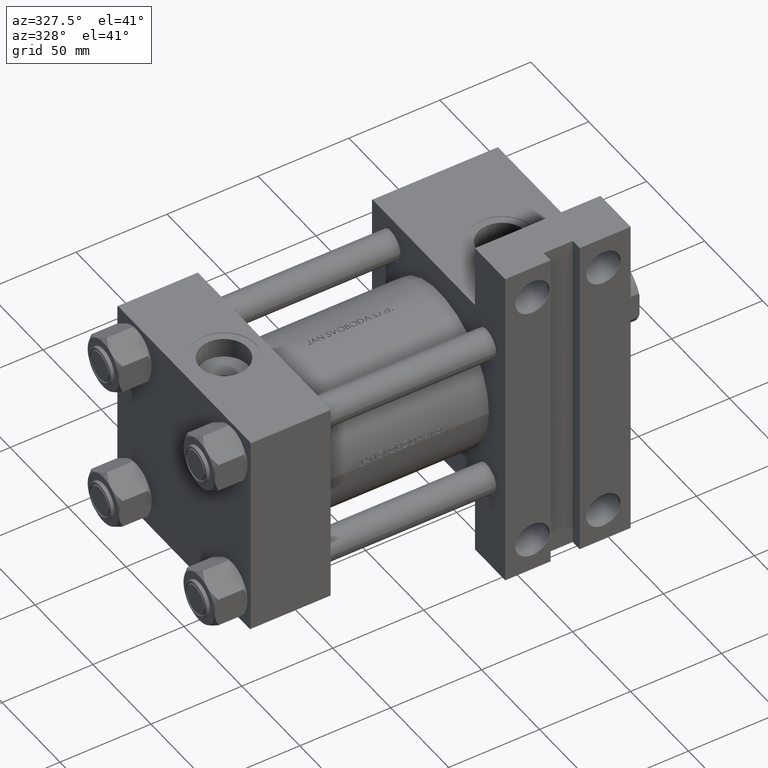
[diagram: clean part render]
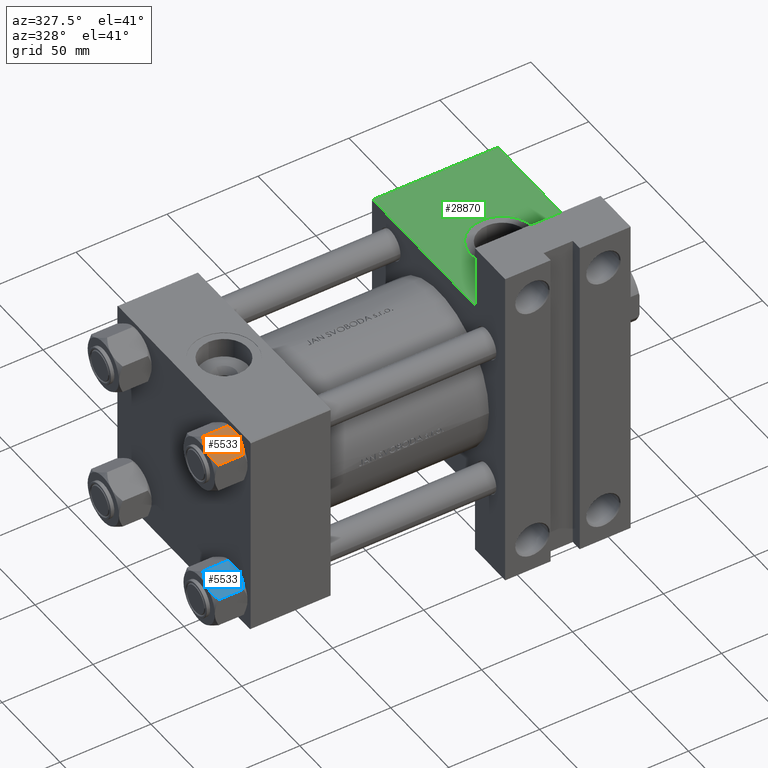
[diagram: same view with three faces highlighted in distinct colors, each labeled with its STEP entity id]
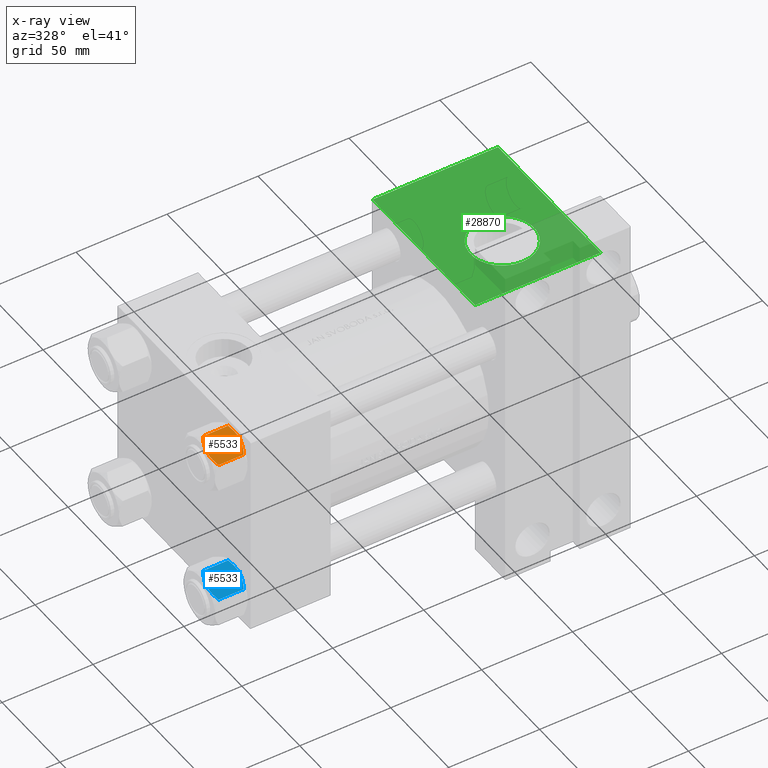
[diagram: x-ray of the same camera — body ghosted, the three highlighted faces saturated]
A machine part, auxiliary view with three faces highlighted in distinct colors.
The next image is the same camera in x-ray (body ghosted, the three faces saturated) — at least one of them is partly hidden behind the body in this view.
Their STEP definitions:

[orange] entity #5533 — the highlighted planar face has unit normal (0, 0.5, -0.866).
#31 = DIRECTION ( 'NONE',  ( 0.4999999999999999445, 0.8660254037844387076, 0.000000000000000000 ) ) ;
#282 = CARTESIAN_POINT ( 'NONE',  ( -9.114548888011780647, 11.26777185211904353, -0.9142282604026925608 ) ) ;
#766 = DIRECTION ( 'NONE',  ( -0.000000000000000000, -0.000000000000000000, 1.000000000000000000 ) ) ;
#783 = VECTOR ( 'NONE', #1164, 999.9999999999998863 ) ;
#817 = CARTESIAN_POINT ( 'NONE',  ( -14.31545111198821374, 2.259544954993889299, -17.08577173959730544 ) ) ;
#1164 = DIRECTION ( 'NONE',  ( 0.4999999999999999445, 0.8660254037844387076, 0.000000000000000000 ) ) ;
#1604 = VERTEX_POINT ( 'NONE', #18184 ) ;
#2180 = CARTESIAN_POINT ( 'NONE',  ( -9.439480280627259745, 10.70497417113493022, -17.26828031537189290 ) ) ;
#2284 = DIRECTION ( 'NONE',  ( 0.4999999999999998890, 0.8660254037844385966, 0.000000000000000000 ) ) ;
#3020 = CARTESIAN_POINT ( 'NONE',  ( -14.92394044919338825, 1.205610507090627781, -1.434462921875002683 ) ) ;
#3071 = ORIENTED_EDGE ( 'NONE', *, *, #34658, .F. ) ;
#3387 = LINE ( 'NONE', #47657, #44774 ) ;
#4420 = LINE ( 'NONE', #4895, #14957 ) ;
#4895 = CARTESIAN_POINT ( 'NONE',  ( -7.809999999999996945, 13.52731680711293727, -18.00000000000000000 ) ) ;
#4922 = B_SPLINE_CURVE_WITH_KNOTS ( 'NONE', 3,
 ( #27691, #24036, #32055, #2180, #43279, #42814, #38656, #46921 ),
 .UNSPECIFIED., .F., .F.,
 ( 4, 2, 2, 4 ),
 ( 0.007890825462474436100, 0.01181022244528555365, 0.01376992093669111156, 0.01572961942809666946 ),
 .UNSPECIFIED. ) ;
#5533 = ADVANCED_FACE ( 'NONE', ( #12729 ), #6170, .F. ) ;
#6170 = PLANE ( 'NONE',  #15885 ) ;
#6235 = ORIENTED_EDGE ( 'NONE', *, *, #11524, .F. ) ;
#6418 = CARTESIAN_POINT ( 'NONE',  ( -15.61999999999999567, 8.023367828467702033E-15, -16.00000000000000000 ) ) ;
#7357 = VERTEX_POINT ( 'NONE', #8325 ) ;
#7815 = CARTESIAN_POINT ( 'NONE',  ( -7.903528262322672582, 13.36532110482643354, -2.000000000000000000 ) ) ;
#8325 = CARTESIAN_POINT ( 'NONE',  ( -15.61999999999999567, 8.023367828467702033E-15, -1.999999999999998224 ) ) ;
#8808 = ORIENTED_EDGE ( 'NONE', *, *, #43154, .F. ) ;
#9333 = ORIENTED_EDGE ( 'NONE', *, *, #11170, .F. ) ;
#9343 = DIRECTION ( 'NONE',  ( 0.8660254037844387076, -0.4999999999999999445, 0.000000000000000000 ) ) ;
#10672 = DIRECTION ( 'NONE',  ( -0.4999999999999999445, -0.8660254037844387076, 0.000000000000000000 ) ) ;
#11170 = EDGE_CURVE ( 'NONE', #37848, #26957, #45697, .T. ) ;
#11326 = ORIENTED_EDGE ( 'NONE', *, *, #42649, .F. ) ;
#11524 = EDGE_CURVE ( 'NONE', #26957, #7357, #3387, .T. ) ;
#11822 = LINE ( 'NONE', #18629, #46648 ) ;
#11973 = CARTESIAN_POINT ( 'NONE',  ( -11.71500000000000341, 6.763658403556467746, -18.00000000000000000 ) ) ;
#12729 = FACE_OUTER_BOUND ( 'NONE', #19522, .T. ) ;
#13433 = CARTESIAN_POINT ( 'NONE',  ( -15.61999999999999567, 8.023367828467702033E-15, -18.00000000000000000 ) ) ;
#13593 = B_SPLINE_CURVE_WITH_KNOTS ( 'NONE', 3,
 ( #7815, #44790, #282, #15078, #41136, #18005, #32855, #47724 ),
 .UNSPECIFIED., .F., .F.,
 ( 4, 2, 2, 4 ),
 ( 4.472842641835287214E-07, 0.003945636373369305720, 0.005918230917921867007, 0.007890825462474429161 ),
 .UNSPECIFIED. ) ;
#14337 = CARTESIAN_POINT ( 'NONE',  ( -15.61999999999999567, 8.023367828467702033E-15, -1.999999999999998224 ) ) ;
#14957 = VECTOR ( 'NONE', #766, 1000.000000000000000 ) ;
#14981 = DIRECTION ( 'NONE',  ( -0.000000000000000000, -0.000000000000000000, 1.000000000000000000 ) ) ;
#15078 = CARTESIAN_POINT ( 'NONE',  ( -10.06459418565412278, 9.622245127110613083, -0.3836066851120565890 ) ) ;
#15130 = CARTESIAN_POINT ( 'NONE',  ( -13.04337073483128329, 4.462852799541079385, -17.75691532989870325 ) ) ;
#15885 = AXIS2_PLACEMENT_3D ( 'NONE', #13433, #9343, #2284 ) ;
#16242 = B_SPLINE_CURVE_WITH_KNOTS ( 'NONE', 3,
 ( #26788, #40715, #817, #18542, #15130, #45334, #37522, #11973 ),
 .UNSPECIFIED., .F., .F.,
 ( 4, 2, 2, 4 ),
 ( 4.472842641907744530E-07, 0.003945636373369311792, 0.005918230917921873946, 0.007890825462474436100 ),
 .UNSPECIFIED. ) ;
#17181 = CARTESIAN_POINT ( 'NONE',  ( -7.903528262322672582, 13.36532110482643354, -2.000000000000000000 ) ) ;
#17479 = ORIENTED_EDGE ( 'NONE', *, *, #27970, .F. ) ;
#17812 = CARTESIAN_POINT ( 'NONE',  ( -11.71500000000000341, 6.763658403556467746, 0.000000000000000000 ) ) ;
#18005 = CARTESIAN_POINT ( 'NONE',  ( -11.04378428799594758, 7.926238119586002995, -0.05089381635301037932 ) ) ;
#18184 = CARTESIAN_POINT ( 'NONE',  ( -11.71500000000000341, 6.763658403556467746, -18.00000000000000000 ) ) ;
#18542 = CARTESIAN_POINT ( 'NONE',  ( -13.36540581434587516, 3.905071680002318857, -17.61639331488794369 ) ) ;
#18629 = CARTESIAN_POINT ( 'NONE',  ( -15.61999999999999567, 8.023367828467702033E-15, -18.00000000000000000 ) ) ;
#18802 = VERTEX_POINT ( 'NONE', #23908 ) ;
#18880 = VERTEX_POINT ( 'NONE', #34858 ) ;
#19399 = EDGE_CURVE ( 'NONE', #34791, #20508, #33070, .T. ) ;
#19522 = EDGE_LOOP ( 'NONE', ( #23985, #23314, #6235, #9333, #8808, #38226, #17479, #11326, #3071, #19821 ) ) ;
#19821 = ORIENTED_EDGE ( 'NONE', *, *, #37429, .F. ) ;
#20308 = EDGE_CURVE ( 'NONE', #31905, #18880, #33322, .T. ) ;
#20508 = VERTEX_POINT ( 'NONE', #17181 ) ;
#20744 = CARTESIAN_POINT ( 'NONE',  ( -13.02784502466562522, 4.489744118371585380, -0.1971866459924509485 ) ) ;
#21413 = EDGE_CURVE ( 'NONE', #31905, #7357, #11822, .T. ) ;
#22097 = DIRECTION ( 'NONE',  ( -0.4999999999999999445, -0.8660254037844387076, 0.000000000000000000 ) ) ;
#23314 = ORIENTED_EDGE ( 'NONE', *, *, #21413, .T. ) ;
#23908 = CARTESIAN_POINT ( 'NONE',  ( -7.903528262322672582, 13.36532110482643354, -16.00000000000000000 ) ) ;
#23985 = ORIENTED_EDGE ( 'NONE', *, *, #20308, .F. ) ;
#24036 = CARTESIAN_POINT ( 'NONE',  ( -11.05297796109637787, 7.910314210667880985, -18.00000000000000355 ) ) ;
#25421 = CARTESIAN_POINT ( 'NONE',  ( -11.71500000000000341, 6.763658403556467746, 0.000000000000000000 ) ) ;
#26667 = CARTESIAN_POINT ( 'NONE',  ( -15.61999999999999567, 8.023367828467702033E-15, -16.00000000000000000 ) ) ;
#26788 = CARTESIAN_POINT ( 'NONE',  ( -15.52647173767732802, 0.1619957022864961793, -16.00000000000000000 ) ) ;
#26957 = VERTEX_POINT ( 'NONE', #30576 ) ;
#27691 = CARTESIAN_POINT ( 'NONE',  ( -11.71500000000000341, 6.763658403556467746, -18.00000000000000000 ) ) ;
#27970 = EDGE_CURVE ( 'NONE', #34929, #34791, #4420, .T. ) ;
#28766 = CARTESIAN_POINT ( 'NONE',  ( -12.37702203890362185, 5.617002596445053619, 4.300668617525835570E-15 ) ) ;
#28873 = CARTESIAN_POINT ( 'NONE',  ( -7.809999999999996945, 13.52731680711293727, -1.999999999999998224 ) ) ;
#30576 = CARTESIAN_POINT ( 'NONE',  ( -15.52647173767732802, 0.1619957022864961793, -2.000000000000000000 ) ) ;
#31712 = CARTESIAN_POINT ( 'NONE',  ( -15.52647173767732802, 0.1619957022864961793, -2.000000000000000000 ) ) ;
#31905 = VERTEX_POINT ( 'NONE', #6418 ) ;
#32055 = CARTESIAN_POINT ( 'NONE',  ( -10.40215497533436917, 9.037572688741351001, -17.80281335400754017 ) ) ;
#32181 = CARTESIAN_POINT ( 'NONE',  ( -14.30591678195076177, 2.276058899034892224, -0.9473872146228117241 ) ) ;
#32417 = CARTESIAN_POINT ( 'NONE',  ( -15.22736220980736377, 0.6800686015852189792, -1.706311779141444385 ) ) ;
#32855 = CARTESIAN_POINT ( 'NONE',  ( -11.38181071908714515, 7.340759166634869715, 4.331726492258492723E-15 ) ) ;
#33070 = LINE ( 'NONE', #14337, #38782 ) ;
#33322 = LINE ( 'NONE', #40160, #48139 ) ;
#33505 = LINE ( 'NONE', #26667, #783 ) ;
#34658 = EDGE_CURVE ( 'NONE', #1604, #18802, #4922, .T. ) ;
#34791 = VERTEX_POINT ( 'NONE', #28873 ) ;
#34858 = CARTESIAN_POINT ( 'NONE',  ( -15.52647173767732802, 0.1619957022864961793, -16.00000000000000000 ) ) ;
#34929 = VERTEX_POINT ( 'NONE', #42990 ) ;
#37429 = EDGE_CURVE ( 'NONE', #18880, #1604, #16242, .T. ) ;
#37522 = CARTESIAN_POINT ( 'NONE',  ( -12.04818928091285457, 6.186557640478063114, -18.00000000000000711 ) ) ;
#37848 = VERTEX_POINT ( 'NONE', #25421 ) ;
#38226 = ORIENTED_EDGE ( 'NONE', *, *, #19399, .F. ) ;
#38656 = CARTESIAN_POINT ( 'NONE',  ( -8.202637790192643052, 12.84724820552771263, -16.29368822085855584 ) ) ;
#38782 = VECTOR ( 'NONE', #22097, 999.9999999999998863 ) ;
#40160 = CARTESIAN_POINT ( 'NONE',  ( -15.61999999999999567, 8.023367828467702033E-15, -16.00000000000000000 ) ) ;
#40715 = CARTESIAN_POINT ( 'NONE',  ( -14.92760668674625713, 1.199260397376444409, -16.58801072835993295 ) ) ;
#41136 = CARTESIAN_POINT ( 'NONE',  ( -10.38662926516871998, 9.064464007571849891, -0.2430846701012936983 ) ) ;
#42649 = EDGE_CURVE ( 'NONE', #18802, #34929, #33505, .T. ) ;
#42814 = CARTESIAN_POINT ( 'NONE',  ( -8.506059550806615022, 12.32170630002230638, -16.56553707812499354 ) ) ;
#42990 = CARTESIAN_POINT ( 'NONE',  ( -7.809999999999996945, 13.52731680711293727, -16.00000000000000000 ) ) ;
#43154 = EDGE_CURVE ( 'NONE', #20508, #37848, #13593, .T. ) ;
#43279 = CARTESIAN_POINT ( 'NONE',  ( -9.124083218049239719, 11.25125790807804194, -17.05261278537718539 ) ) ;
#44774 = VECTOR ( 'NONE', #10672, 999.9999999999998863 ) ;
#44790 = CARTESIAN_POINT ( 'NONE',  ( -8.502393313253749696, 12.32805640973648309, -1.411989271640067933 ) ) ;
#45334 = CARTESIAN_POINT ( 'NONE',  ( -12.38621571200405569, 5.601078687526927169, -17.94910618364698252 ) ) ;
#45697 = B_SPLINE_CURVE_WITH_KNOTS ( 'NONE', 3,
 ( #17812, #28766, #20744, #47051, #32181, #3020, #32417, #31712 ),
 .UNSPECIFIED., .F., .F.,
 ( 4, 2, 2, 4 ),
 ( 0.007890825462474429161, 0.01181022244528554845, 0.01376992093669110635, 0.01572961942809666600 ),
 .UNSPECIFIED. ) ;
#46648 = VECTOR ( 'NONE', #14981, 1000.000000000000000 ) ;
#46921 = CARTESIAN_POINT ( 'NONE',  ( -7.903528262322672582, 13.36532110482643354, -16.00000000000000000 ) ) ;
#47051 = CARTESIAN_POINT ( 'NONE',  ( -13.99051971937273997, 2.822342635978005276, -0.7317196846281108780 ) ) ;
#47657 = CARTESIAN_POINT ( 'NONE',  ( -15.61999999999999567, 8.023367828467702033E-15, -1.999999999999998224 ) ) ;
#47724 = CARTESIAN_POINT ( 'NONE',  ( -11.71500000000000341, 6.763658403556467746, 0.000000000000000000 ) ) ;
#48139 = VECTOR ( 'NONE', #31, 999.9999999999998863 ) ;

[blue] entity #5533 — the highlighted planar face has unit normal (0, 0.5, -0.866).
#31 = DIRECTION ( 'NONE',  ( 0.4999999999999999445, 0.8660254037844387076, 0.000000000000000000 ) ) ;
#282 = CARTESIAN_POINT ( 'NONE',  ( -9.114548888011780647, 11.26777185211904353, -0.9142282604026925608 ) ) ;
#766 = DIRECTION ( 'NONE',  ( -0.000000000000000000, -0.000000000000000000, 1.000000000000000000 ) ) ;
#783 = VECTOR ( 'NONE', #1164, 999.9999999999998863 ) ;
#817 = CARTESIAN_POINT ( 'NONE',  ( -14.31545111198821374, 2.259544954993889299, -17.08577173959730544 ) ) ;
#1164 = DIRECTION ( 'NONE',  ( 0.4999999999999999445, 0.8660254037844387076, 0.000000000000000000 ) ) ;
#1604 = VERTEX_POINT ( 'NONE', #18184 ) ;
#2180 = CARTESIAN_POINT ( 'NONE',  ( -9.439480280627259745, 10.70497417113493022, -17.26828031537189290 ) ) ;
#2284 = DIRECTION ( 'NONE',  ( 0.4999999999999998890, 0.8660254037844385966, 0.000000000000000000 ) ) ;
#3020 = CARTESIAN_POINT ( 'NONE',  ( -14.92394044919338825, 1.205610507090627781, -1.434462921875002683 ) ) ;
#3071 = ORIENTED_EDGE ( 'NONE', *, *, #34658, .F. ) ;
#3387 = LINE ( 'NONE', #47657, #44774 ) ;
#4420 = LINE ( 'NONE', #4895, #14957 ) ;
#4895 = CARTESIAN_POINT ( 'NONE',  ( -7.809999999999996945, 13.52731680711293727, -18.00000000000000000 ) ) ;
#4922 = B_SPLINE_CURVE_WITH_KNOTS ( 'NONE', 3,
 ( #27691, #24036, #32055, #2180, #43279, #42814, #38656, #46921 ),
 .UNSPECIFIED., .F., .F.,
 ( 4, 2, 2, 4 ),
 ( 0.007890825462474436100, 0.01181022244528555365, 0.01376992093669111156, 0.01572961942809666946 ),
 .UNSPECIFIED. ) ;
#5533 = ADVANCED_FACE ( 'NONE', ( #12729 ), #6170, .F. ) ;
#6170 = PLANE ( 'NONE',  #15885 ) ;
#6235 = ORIENTED_EDGE ( 'NONE', *, *, #11524, .F. ) ;
#6418 = CARTESIAN_POINT ( 'NONE',  ( -15.61999999999999567, 8.023367828467702033E-15, -16.00000000000000000 ) ) ;
#7357 = VERTEX_POINT ( 'NONE', #8325 ) ;
#7815 = CARTESIAN_POINT ( 'NONE',  ( -7.903528262322672582, 13.36532110482643354, -2.000000000000000000 ) ) ;
#8325 = CARTESIAN_POINT ( 'NONE',  ( -15.61999999999999567, 8.023367828467702033E-15, -1.999999999999998224 ) ) ;
#8808 = ORIENTED_EDGE ( 'NONE', *, *, #43154, .F. ) ;
#9333 = ORIENTED_EDGE ( 'NONE', *, *, #11170, .F. ) ;
#9343 = DIRECTION ( 'NONE',  ( 0.8660254037844387076, -0.4999999999999999445, 0.000000000000000000 ) ) ;
#10672 = DIRECTION ( 'NONE',  ( -0.4999999999999999445, -0.8660254037844387076, 0.000000000000000000 ) ) ;
#11170 = EDGE_CURVE ( 'NONE', #37848, #26957, #45697, .T. ) ;
#11326 = ORIENTED_EDGE ( 'NONE', *, *, #42649, .F. ) ;
#11524 = EDGE_CURVE ( 'NONE', #26957, #7357, #3387, .T. ) ;
#11822 = LINE ( 'NONE', #18629, #46648 ) ;
#11973 = CARTESIAN_POINT ( 'NONE',  ( -11.71500000000000341, 6.763658403556467746, -18.00000000000000000 ) ) ;
#12729 = FACE_OUTER_BOUND ( 'NONE', #19522, .T. ) ;
#13433 = CARTESIAN_POINT ( 'NONE',  ( -15.61999999999999567, 8.023367828467702033E-15, -18.00000000000000000 ) ) ;
#13593 = B_SPLINE_CURVE_WITH_KNOTS ( 'NONE', 3,
 ( #7815, #44790, #282, #15078, #41136, #18005, #32855, #47724 ),
 .UNSPECIFIED., .F., .F.,
 ( 4, 2, 2, 4 ),
 ( 4.472842641835287214E-07, 0.003945636373369305720, 0.005918230917921867007, 0.007890825462474429161 ),
 .UNSPECIFIED. ) ;
#14337 = CARTESIAN_POINT ( 'NONE',  ( -15.61999999999999567, 8.023367828467702033E-15, -1.999999999999998224 ) ) ;
#14957 = VECTOR ( 'NONE', #766, 1000.000000000000000 ) ;
#14981 = DIRECTION ( 'NONE',  ( -0.000000000000000000, -0.000000000000000000, 1.000000000000000000 ) ) ;
#15078 = CARTESIAN_POINT ( 'NONE',  ( -10.06459418565412278, 9.622245127110613083, -0.3836066851120565890 ) ) ;
#15130 = CARTESIAN_POINT ( 'NONE',  ( -13.04337073483128329, 4.462852799541079385, -17.75691532989870325 ) ) ;
#15885 = AXIS2_PLACEMENT_3D ( 'NONE', #13433, #9343, #2284 ) ;
#16242 = B_SPLINE_CURVE_WITH_KNOTS ( 'NONE', 3,
 ( #26788, #40715, #817, #18542, #15130, #45334, #37522, #11973 ),
 .UNSPECIFIED., .F., .F.,
 ( 4, 2, 2, 4 ),
 ( 4.472842641907744530E-07, 0.003945636373369311792, 0.005918230917921873946, 0.007890825462474436100 ),
 .UNSPECIFIED. ) ;
#17181 = CARTESIAN_POINT ( 'NONE',  ( -7.903528262322672582, 13.36532110482643354, -2.000000000000000000 ) ) ;
#17479 = ORIENTED_EDGE ( 'NONE', *, *, #27970, .F. ) ;
#17812 = CARTESIAN_POINT ( 'NONE',  ( -11.71500000000000341, 6.763658403556467746, 0.000000000000000000 ) ) ;
#18005 = CARTESIAN_POINT ( 'NONE',  ( -11.04378428799594758, 7.926238119586002995, -0.05089381635301037932 ) ) ;
#18184 = CARTESIAN_POINT ( 'NONE',  ( -11.71500000000000341, 6.763658403556467746, -18.00000000000000000 ) ) ;
#18542 = CARTESIAN_POINT ( 'NONE',  ( -13.36540581434587516, 3.905071680002318857, -17.61639331488794369 ) ) ;
#18629 = CARTESIAN_POINT ( 'NONE',  ( -15.61999999999999567, 8.023367828467702033E-15, -18.00000000000000000 ) ) ;
#18802 = VERTEX_POINT ( 'NONE', #23908 ) ;
#18880 = VERTEX_POINT ( 'NONE', #34858 ) ;
#19399 = EDGE_CURVE ( 'NONE', #34791, #20508, #33070, .T. ) ;
#19522 = EDGE_LOOP ( 'NONE', ( #23985, #23314, #6235, #9333, #8808, #38226, #17479, #11326, #3071, #19821 ) ) ;
#19821 = ORIENTED_EDGE ( 'NONE', *, *, #37429, .F. ) ;
#20308 = EDGE_CURVE ( 'NONE', #31905, #18880, #33322, .T. ) ;
#20508 = VERTEX_POINT ( 'NONE', #17181 ) ;
#20744 = CARTESIAN_POINT ( 'NONE',  ( -13.02784502466562522, 4.489744118371585380, -0.1971866459924509485 ) ) ;
#21413 = EDGE_CURVE ( 'NONE', #31905, #7357, #11822, .T. ) ;
#22097 = DIRECTION ( 'NONE',  ( -0.4999999999999999445, -0.8660254037844387076, 0.000000000000000000 ) ) ;
#23314 = ORIENTED_EDGE ( 'NONE', *, *, #21413, .T. ) ;
#23908 = CARTESIAN_POINT ( 'NONE',  ( -7.903528262322672582, 13.36532110482643354, -16.00000000000000000 ) ) ;
#23985 = ORIENTED_EDGE ( 'NONE', *, *, #20308, .F. ) ;
#24036 = CARTESIAN_POINT ( 'NONE',  ( -11.05297796109637787, 7.910314210667880985, -18.00000000000000355 ) ) ;
#25421 = CARTESIAN_POINT ( 'NONE',  ( -11.71500000000000341, 6.763658403556467746, 0.000000000000000000 ) ) ;
#26667 = CARTESIAN_POINT ( 'NONE',  ( -15.61999999999999567, 8.023367828467702033E-15, -16.00000000000000000 ) ) ;
#26788 = CARTESIAN_POINT ( 'NONE',  ( -15.52647173767732802, 0.1619957022864961793, -16.00000000000000000 ) ) ;
#26957 = VERTEX_POINT ( 'NONE', #30576 ) ;
#27691 = CARTESIAN_POINT ( 'NONE',  ( -11.71500000000000341, 6.763658403556467746, -18.00000000000000000 ) ) ;
#27970 = EDGE_CURVE ( 'NONE', #34929, #34791, #4420, .T. ) ;
#28766 = CARTESIAN_POINT ( 'NONE',  ( -12.37702203890362185, 5.617002596445053619, 4.300668617525835570E-15 ) ) ;
#28873 = CARTESIAN_POINT ( 'NONE',  ( -7.809999999999996945, 13.52731680711293727, -1.999999999999998224 ) ) ;
#30576 = CARTESIAN_POINT ( 'NONE',  ( -15.52647173767732802, 0.1619957022864961793, -2.000000000000000000 ) ) ;
#31712 = CARTESIAN_POINT ( 'NONE',  ( -15.52647173767732802, 0.1619957022864961793, -2.000000000000000000 ) ) ;
#31905 = VERTEX_POINT ( 'NONE', #6418 ) ;
#32055 = CARTESIAN_POINT ( 'NONE',  ( -10.40215497533436917, 9.037572688741351001, -17.80281335400754017 ) ) ;
#32181 = CARTESIAN_POINT ( 'NONE',  ( -14.30591678195076177, 2.276058899034892224, -0.9473872146228117241 ) ) ;
#32417 = CARTESIAN_POINT ( 'NONE',  ( -15.22736220980736377, 0.6800686015852189792, -1.706311779141444385 ) ) ;
#32855 = CARTESIAN_POINT ( 'NONE',  ( -11.38181071908714515, 7.340759166634869715, 4.331726492258492723E-15 ) ) ;
#33070 = LINE ( 'NONE', #14337, #38782 ) ;
#33322 = LINE ( 'NONE', #40160, #48139 ) ;
#33505 = LINE ( 'NONE', #26667, #783 ) ;
#34658 = EDGE_CURVE ( 'NONE', #1604, #18802, #4922, .T. ) ;
#34791 = VERTEX_POINT ( 'NONE', #28873 ) ;
#34858 = CARTESIAN_POINT ( 'NONE',  ( -15.52647173767732802, 0.1619957022864961793, -16.00000000000000000 ) ) ;
#34929 = VERTEX_POINT ( 'NONE', #42990 ) ;
#37429 = EDGE_CURVE ( 'NONE', #18880, #1604, #16242, .T. ) ;
#37522 = CARTESIAN_POINT ( 'NONE',  ( -12.04818928091285457, 6.186557640478063114, -18.00000000000000711 ) ) ;
#37848 = VERTEX_POINT ( 'NONE', #25421 ) ;
#38226 = ORIENTED_EDGE ( 'NONE', *, *, #19399, .F. ) ;
#38656 = CARTESIAN_POINT ( 'NONE',  ( -8.202637790192643052, 12.84724820552771263, -16.29368822085855584 ) ) ;
#38782 = VECTOR ( 'NONE', #22097, 999.9999999999998863 ) ;
#40160 = CARTESIAN_POINT ( 'NONE',  ( -15.61999999999999567, 8.023367828467702033E-15, -16.00000000000000000 ) ) ;
#40715 = CARTESIAN_POINT ( 'NONE',  ( -14.92760668674625713, 1.199260397376444409, -16.58801072835993295 ) ) ;
#41136 = CARTESIAN_POINT ( 'NONE',  ( -10.38662926516871998, 9.064464007571849891, -0.2430846701012936983 ) ) ;
#42649 = EDGE_CURVE ( 'NONE', #18802, #34929, #33505, .T. ) ;
#42814 = CARTESIAN_POINT ( 'NONE',  ( -8.506059550806615022, 12.32170630002230638, -16.56553707812499354 ) ) ;
#42990 = CARTESIAN_POINT ( 'NONE',  ( -7.809999999999996945, 13.52731680711293727, -16.00000000000000000 ) ) ;
#43154 = EDGE_CURVE ( 'NONE', #20508, #37848, #13593, .T. ) ;
#43279 = CARTESIAN_POINT ( 'NONE',  ( -9.124083218049239719, 11.25125790807804194, -17.05261278537718539 ) ) ;
#44774 = VECTOR ( 'NONE', #10672, 999.9999999999998863 ) ;
#44790 = CARTESIAN_POINT ( 'NONE',  ( -8.502393313253749696, 12.32805640973648309, -1.411989271640067933 ) ) ;
#45334 = CARTESIAN_POINT ( 'NONE',  ( -12.38621571200405569, 5.601078687526927169, -17.94910618364698252 ) ) ;
#45697 = B_SPLINE_CURVE_WITH_KNOTS ( 'NONE', 3,
 ( #17812, #28766, #20744, #47051, #32181, #3020, #32417, #31712 ),
 .UNSPECIFIED., .F., .F.,
 ( 4, 2, 2, 4 ),
 ( 0.007890825462474429161, 0.01181022244528554845, 0.01376992093669110635, 0.01572961942809666600 ),
 .UNSPECIFIED. ) ;
#46648 = VECTOR ( 'NONE', #14981, 1000.000000000000000 ) ;
#46921 = CARTESIAN_POINT ( 'NONE',  ( -7.903528262322672582, 13.36532110482643354, -16.00000000000000000 ) ) ;
#47051 = CARTESIAN_POINT ( 'NONE',  ( -13.99051971937273997, 2.822342635978005276, -0.7317196846281108780 ) ) ;
#47657 = CARTESIAN_POINT ( 'NONE',  ( -15.61999999999999567, 8.023367828467702033E-15, -1.999999999999998224 ) ) ;
#47724 = CARTESIAN_POINT ( 'NONE',  ( -11.71500000000000341, 6.763658403556467746, 0.000000000000000000 ) ) ;
#48139 = VECTOR ( 'NONE', #31, 999.9999999999998863 ) ;

[green] entity #28870 — the highlighted planar face has unit normal (0, 0, -1).
#1282 = DIRECTION ( 'NONE',  ( 0.000000000000000000, 0.000000000000000000, -1.000000000000000000 ) ) ;
#2501 = EDGE_CURVE ( 'NONE', #39047, #32718, #4834, .T. ) ;
#4595 = CARTESIAN_POINT ( 'NONE',  ( 209.0000000000000284, -57.49999999999999289, 57.49999999999999289 ) ) ;
#4627 = CARTESIAN_POINT ( 'NONE',  ( 140.0000000000000000, -57.49999999999999289, -31.49999999999997158 ) ) ;
#4834 = LINE ( 'NONE', #4595, #4983 ) ;
#4983 = VECTOR ( 'NONE', #19397, 1000.000000000000000 ) ;
#5799 = EDGE_CURVE ( 'NONE', #23218, #46779, #29917, .T. ) ;
#6184 = DIRECTION ( 'NONE',  ( -0.000000000000000000, 1.000000000000000000, 0.000000000000000000 ) ) ;
#7900 = ORIENTED_EDGE ( 'NONE', *, *, #31480, .F. ) ;
#8274 = DIRECTION ( 'NONE',  ( 1.000000000000000000, -1.005636797667714163E-16, 0.000000000000000000 ) ) ;
#8330 = ORIENTED_EDGE ( 'NONE', *, *, #38098, .T. ) ;
#9029 = VECTOR ( 'NONE', #1282, 1000.000000000000000 ) ;
#9375 = CARTESIAN_POINT ( 'NONE',  ( 209.0000000000000284, -57.49999999999999289, 56.99999999999996447 ) ) ;
#10250 = VECTOR ( 'NONE', #8274, 1000.000000000000000 ) ;
#10538 = AXIS2_PLACEMENT_3D ( 'NONE', #31704, #6184, #13448 ) ;
#11621 = ORIENTED_EDGE ( 'NONE', *, *, #5799, .F. ) ;
#12727 = ORIENTED_EDGE ( 'NONE', *, *, #29995, .T. ) ;
#12761 = DIRECTION ( 'NONE',  ( -1.000000000000000000, 0.000000000000000000, 0.000000000000000000 ) ) ;
#13448 = DIRECTION ( 'NONE',  ( 0.000000000000000000, -0.000000000000000000, 1.000000000000000000 ) ) ;
#13576 = CARTESIAN_POINT ( 'NONE',  ( 209.0000000000000284, -57.49999999999999289, 56.99999999999996447 ) ) ;
#13966 = CARTESIAN_POINT ( 'NONE',  ( 175.0000000000000284, -57.49999999999999289, 0.000000000000000000 ) ) ;
#14430 = EDGE_LOOP ( 'NONE', ( #7900, #11621 ) ) ;
#15229 = CIRCLE ( 'NONE', #31562, 17.49999999999999289 ) ;
#16858 = FACE_OUTER_BOUND ( 'NONE', #44221, .T. ) ;
#17020 = CARTESIAN_POINT ( 'NONE',  ( 175.0000000000000284, -57.49999999999999289, 0.000000000000000000 ) ) ;
#19397 = DIRECTION ( 'NONE',  ( 0.000000000000000000, 0.000000000000000000, -1.000000000000000000 ) ) ;
#20196 = DIRECTION ( 'NONE',  ( 0.000000000000000000, 0.000000000000000000, -1.000000000000000000 ) ) ;
#23218 = VERTEX_POINT ( 'NONE', #24367 ) ;
#24367 = CARTESIAN_POINT ( 'NONE',  ( 175.0000000000000284, -57.49999999999999289, 17.49999999999999289 ) ) ;
#24803 = VECTOR ( 'NONE', #12761, 1000.000000000000000 ) ;
#25099 = FACE_BOUND ( 'NONE', #14430, .T. ) ;
#25349 = CARTESIAN_POINT ( 'NONE',  ( 209.0000000000000284, -57.49999999999999289, -31.49999999999997158 ) ) ;
#25558 = ORIENTED_EDGE ( 'NONE', *, *, #2501, .F. ) ;
#25997 = LINE ( 'NONE', #4627, #10250 ) ;
#27829 = LINE ( 'NONE', #9375, #24803 ) ;
#28601 = VERTEX_POINT ( 'NONE', #44423 ) ;
#28870 = ADVANCED_FACE ( 'NONE', ( #25099, #16858 ), #47284, .F. ) ;
#29917 = CIRCLE ( 'NONE', #45484, 17.49999999999999289 ) ;
#29995 = EDGE_CURVE ( 'NONE', #28601, #46037, #42646, .T. ) ;
#31480 = EDGE_CURVE ( 'NONE', #46779, #23218, #15229, .T. ) ;
#31562 = AXIS2_PLACEMENT_3D ( 'NONE', #13966, #36359, #47335 ) ;
#31704 = CARTESIAN_POINT ( 'NONE',  ( 209.0000000000000284, -57.49999999999999289, 57.49999999999999289 ) ) ;
#32718 = VERTEX_POINT ( 'NONE', #25349 ) ;
#35301 = CARTESIAN_POINT ( 'NONE',  ( 140.0000000000000000, -57.49999999999999289, 57.49999999999999289 ) ) ;
#35577 = CARTESIAN_POINT ( 'NONE',  ( 175.0000000000000284, -57.49999999999999289, -17.49999999999999289 ) ) ;
#36359 = DIRECTION ( 'NONE',  ( 0.000000000000000000, -1.000000000000000000, -8.673617379884036705E-17 ) ) ;
#38098 = EDGE_CURVE ( 'NONE', #39047, #28601, #27829, .T. ) ;
#39047 = VERTEX_POINT ( 'NONE', #13576 ) ;
#39355 = CARTESIAN_POINT ( 'NONE',  ( 140.0000000000000000, -57.49999999999999289, -31.49999999999997158 ) ) ;
#41417 = ORIENTED_EDGE ( 'NONE', *, *, #47278, .T. ) ;
#42646 = LINE ( 'NONE', #35301, #9029 ) ;
#44221 = EDGE_LOOP ( 'NONE', ( #25558, #8330, #12727, #41417 ) ) ;
#44423 = CARTESIAN_POINT ( 'NONE',  ( 140.0000000000000000, -57.49999999999999289, 56.99999999999996447 ) ) ;
#45484 = AXIS2_PLACEMENT_3D ( 'NONE', #17020, #46031, #20196 ) ;
#46031 = DIRECTION ( 'NONE',  ( 0.000000000000000000, -1.000000000000000000, -8.673617379884036705E-17 ) ) ;
#46037 = VERTEX_POINT ( 'NONE', #39355 ) ;
#46779 = VERTEX_POINT ( 'NONE', #35577 ) ;
#47278 = EDGE_CURVE ( 'NONE', #46037, #32718, #25997, .T. ) ;
#47284 = PLANE ( 'NONE',  #10538 ) ;
#47335 = DIRECTION ( 'NONE',  ( 0.000000000000000000, 0.000000000000000000, -1.000000000000000000 ) ) ;